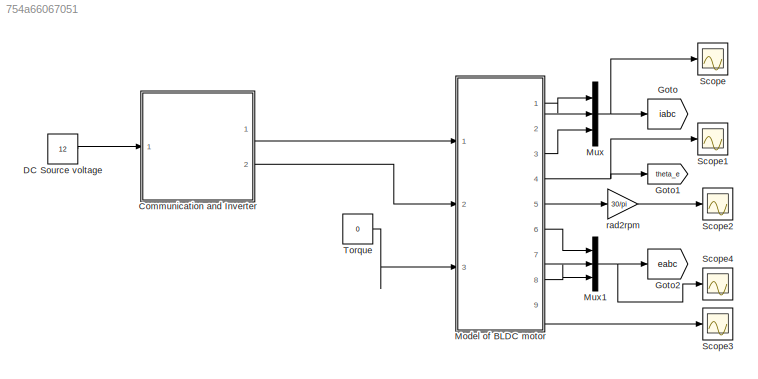
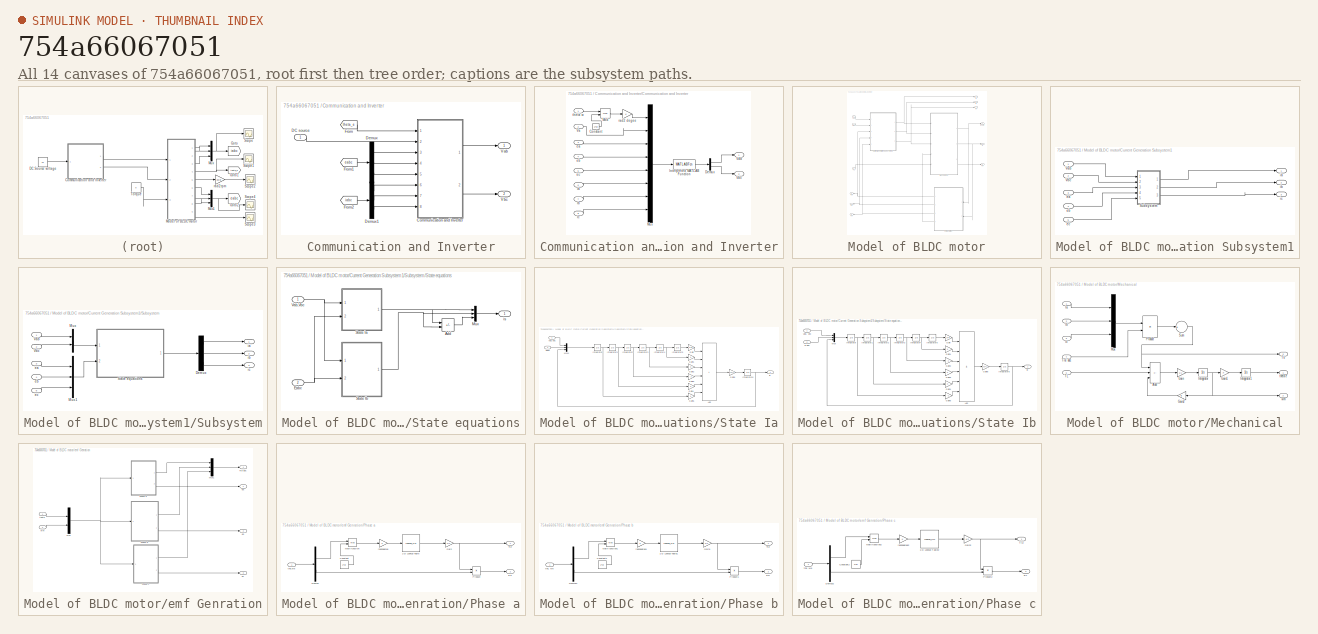
[diagram: thumbnail index - all 14 canvases of the model, root first then tree order]
MODEL slx_754a66067051
KIND model
CONFIG AbsTol = auto
CONFIG EnableMultiTasking = off
CONFIG FixedStep = auto
CONFIG MaxStep = auto
CONFIG MinStep = auto
CONFIG RelTol = 1e-3
CONFIG SampleTimeConstraint = Unconstrained
CONFIG SolverName = VariableStepAuto
CONFIG StartTime = 0.0
CONFIG StopTime = 10.0
BLOCK [SubSystem] Communication and Inverter
  Ports = [1, 2]
  RequestExecContextInheritance = off
BLOCK [SubSystem] Communication and Inverter/Communication and Inverter
  Ports = [8, 2]
  RequestExecContextInheritance = off
BLOCK [Constant] Communication and Inverter/Communication and Inverter/Constant
  Value = 2*pi
BLOCK [Demux] Communication and Inverter/Communication and Inverter/Demux
  Outputs = 2
  Ports = [1, 2]
BLOCK [Inport] Communication and Inverter/Communication and Inverter/Ia
  Port = 6
BLOCK [Inport] Communication and Inverter/Communication and Inverter/Ib
  Port = 7
BLOCK [Inport] Communication and Inverter/Communication and Inverter/Ic
  Port = 8
BLOCK [MATLABFcn] Communication and Inverter/Communication and Inverter/Interpreted MATLAB Function
  Ports = [1, 1]
BLOCK [Math] Communication and Inverter/Communication and Inverter/Mod
  Operator = mod
  Ports = [2, 1]
BLOCK [Mux] Communication and Inverter/Communication and Inverter/Mux
  DisplayOption = bar
  Inputs = 8
  Ports = [8, 1]
BLOCK [Inport] Communication and Inverter/Communication and Inverter/Va
  Port = 2
BLOCK [Outport] Communication and Inverter/Communication and Inverter/Vab
BLOCK [Outport] Communication and Inverter/Communication and Inverter/Vbc
  Port = 2
BLOCK [Inport] Communication and Inverter/Communication and Inverter/ea
  Port = 3
BLOCK [Inport] Communication and Inverter/Communication and Inverter/eb
  Port = 4
BLOCK [Inport] Communication and Inverter/Communication and Inverter/ec
  Port = 5
BLOCK [Gain] Communication and Inverter/Communication and Inverter/rad2 degee
  Gain = K
BLOCK [Inport] Communication and Inverter/Communication and Inverter/theta w
BLOCK [Inport] Communication and Inverter/DC source
BLOCK [Demux] Communication and Inverter/Demux
  Outputs = 3
  Ports = [1, 3]
BLOCK [Demux] Communication and Inverter/Demux1
  Outputs = 3
  Ports = [1, 3]
BLOCK [From] Communication and Inverter/From
  GotoTag = theta_e
BLOCK [From] Communication and Inverter/From1
  GotoTag = eabc
BLOCK [From] Communication and Inverter/From2
  GotoTag = iabc
BLOCK [Outport] Communication and Inverter/Vab
BLOCK [Outport] Communication and Inverter/Vbc
  Port = 2
BLOCK [Constant] DC Source voltage
  Value = 12
BLOCK [Goto] Goto
  GotoTag = iabc
BLOCK [Goto] Goto1
  GotoTag = theta_e
BLOCK [Goto] Goto2
  GotoTag = eabc
BLOCK [SubSystem] Model of BLDC motor
  Ports = [3, 9]
  RequestExecContextInheritance = off
BLOCK [SubSystem] Model of BLDC motor/Current Generation Subsystem1
  Ports = [5, 3]
  RequestExecContextInheritance = off
BLOCK [SubSystem] Model of BLDC motor/Current Generation Subsystem1/Subsystem
  Ports = [5, 3]
  RequestExecContextInheritance = off
BLOCK [Demux] Model of BLDC motor/Current Generation Subsystem1/Subsystem/Demux
  Outputs = 3
  Ports = [1, 3]
BLOCK [Mux] Model of BLDC motor/Current Generation Subsystem1/Subsystem/Mux
  DisplayOption = bar
  Inputs = 2
  Ports = [2, 1]
BLOCK [Mux] Model of BLDC motor/Current Generation Subsystem1/Subsystem/Mux1
  DisplayOption = bar
  Inputs = 3
  Ports = [3, 1]
BLOCK [SubSystem] Model of BLDC motor/Current Generation Subsystem1/Subsystem/State equations
  Ports = [2, 1]
  RequestExecContextInheritance = off
BLOCK [Sum] Model of BLDC motor/Current Generation Subsystem1/Subsystem/State equations/Add
  IconShape = rectangular
  Inputs = --
  Ports = [2, 1]
BLOCK [Inport] Model of BLDC motor/Current Generation Subsystem1/Subsystem/State equations/Eabc
  Port = 2
BLOCK [Mux] Model of BLDC motor/Current Generation Subsystem1/Subsystem/State equations/Mux
  DisplayOption = bar
  Inputs = 3
  Ports = [3, 1]
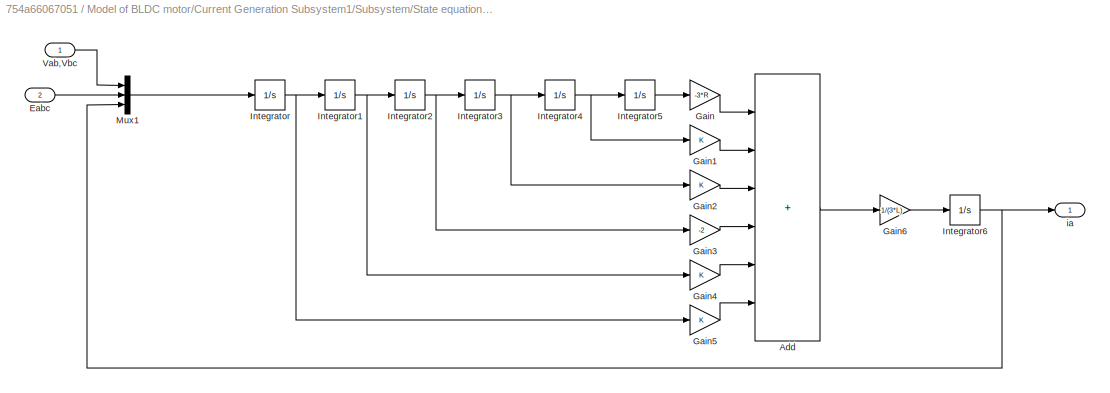
BLOCK [SubSystem] Model of BLDC motor/Current Generation Subsystem1/Subsystem/State equations/State Ia
  Ports = [2, 1]
  RequestExecContextInheritance = off
BLOCK [Sum] Model of BLDC motor/Current Generation Subsystem1/Subsystem/State equations/State Ia/Add
  IconShape = rectangular
  Inputs = ++++++
  Ports = [6, 1]
BLOCK [Inport] Model of BLDC motor/Current Generation Subsystem1/Subsystem/State equations/State Ia/Eabc
  Port = 2
BLOCK [Gain] Model of BLDC motor/Current Generation Subsystem1/Subsystem/State equations/State Ia/Gain
  Gain = -3*R
BLOCK [Gain] Model of BLDC motor/Current Generation Subsystem1/Subsystem/State equations/State Ia/Gain1
BLOCK [Gain] Model of BLDC motor/Current Generation Subsystem1/Subsystem/State equations/State Ia/Gain2
BLOCK [Gain] Model of BLDC motor/Current Generation Subsystem1/Subsystem/State equations/State Ia/Gain3
  Gain = -2
BLOCK [Gain] Model of BLDC motor/Current Generation Subsystem1/Subsystem/State equations/State Ia/Gain4
BLOCK [Gain] Model of BLDC motor/Current Generation Subsystem1/Subsystem/State equations/State Ia/Gain5
BLOCK [Gain] Model of BLDC motor/Current Generation Subsystem1/Subsystem/State equations/State Ia/Gain6
  Gain = 1/(3*L)
BLOCK [Integrator] Model of BLDC motor/Current Generation Subsystem1/Subsystem/State equations/State Ia/Integrator
  Ports = [1, 1]
BLOCK [Integrator] Model of BLDC motor/Current Generation Subsystem1/Subsystem/State equations/State Ia/Integrator1
  Ports = [1, 1]
BLOCK [Integrator] Model of BLDC motor/Current Generation Subsystem1/Subsystem/State equations/State Ia/Integrator2
  Ports = [1, 1]
BLOCK [Integrator] Model of BLDC motor/Current Generation Subsystem1/Subsystem/State equations/State Ia/Integrator3
  Ports = [1, 1]
BLOCK [Integrator] Model of BLDC motor/Current Generation Subsystem1/Subsystem/State equations/State Ia/Integrator4
  Ports = [1, 1]
BLOCK [Integrator] Model of BLDC motor/Current Generation Subsystem1/Subsystem/State equations/State Ia/Integrator5
  Ports = [1, 1]
BLOCK [Integrator] Model of BLDC motor/Current Generation Subsystem1/Subsystem/State equations/State Ia/Integrator6
  Ports = [1, 1]
BLOCK [Mux] Model of BLDC motor/Current Generation Subsystem1/Subsystem/State equations/State Ia/Mux1
  DisplayOption = bar
  Inputs = 3
  Ports = [3, 1]
BLOCK [Inport] Model of BLDC motor/Current Generation Subsystem1/Subsystem/State equations/State Ia/Vab,Vbc
BLOCK [Outport] Model of BLDC motor/Current Generation Subsystem1/Subsystem/State equations/State Ia/ia
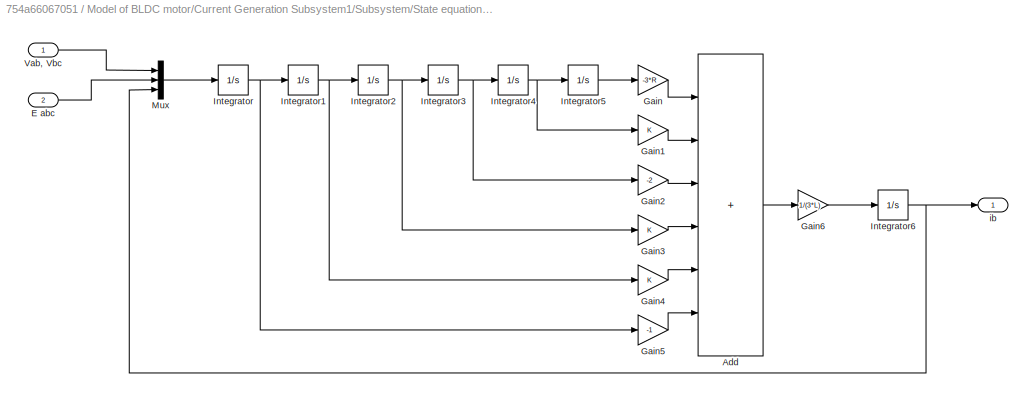
BLOCK [SubSystem] Model of BLDC motor/Current Generation Subsystem1/Subsystem/State equations/State Ib
  Ports = [2, 1]
  RequestExecContextInheritance = off
BLOCK [Sum] Model of BLDC motor/Current Generation Subsystem1/Subsystem/State equations/State Ib/Add
  IconShape = rectangular
  Inputs = ++++++
  Ports = [6, 1]
BLOCK [Inport] Model of BLDC motor/Current Generation Subsystem1/Subsystem/State equations/State Ib/E abc
  Port = 2
BLOCK [Gain] Model of BLDC motor/Current Generation Subsystem1/Subsystem/State equations/State Ib/Gain
  Gain = -3*R
BLOCK [Gain] Model of BLDC motor/Current Generation Subsystem1/Subsystem/State equations/State Ib/Gain1
BLOCK [Gain] Model of BLDC motor/Current Generation Subsystem1/Subsystem/State equations/State Ib/Gain2
  Gain = -2
BLOCK [Gain] Model of BLDC motor/Current Generation Subsystem1/Subsystem/State equations/State Ib/Gain3
BLOCK [Gain] Model of BLDC motor/Current Generation Subsystem1/Subsystem/State equations/State Ib/Gain4
BLOCK [Gain] Model of BLDC motor/Current Generation Subsystem1/Subsystem/State equations/State Ib/Gain5
  Gain = -1
BLOCK [Gain] Model of BLDC motor/Current Generation Subsystem1/Subsystem/State equations/State Ib/Gain6
  Gain = 1/(3*L)
BLOCK [Integrator] Model of BLDC motor/Current Generation Subsystem1/Subsystem/State equations/State Ib/Integrator
  Ports = [1, 1]
BLOCK [Integrator] Model of BLDC motor/Current Generation Subsystem1/Subsystem/State equations/State Ib/Integrator1
  Ports = [1, 1]
BLOCK [Integrator] Model of BLDC motor/Current Generation Subsystem1/Subsystem/State equations/State Ib/Integrator2
  Ports = [1, 1]
BLOCK [Integrator] Model of BLDC motor/Current Generation Subsystem1/Subsystem/State equations/State Ib/Integrator3
  Ports = [1, 1]
BLOCK [Integrator] Model of BLDC motor/Current Generation Subsystem1/Subsystem/State equations/State Ib/Integrator4
  Ports = [1, 1]
BLOCK [Integrator] Model of BLDC motor/Current Generation Subsystem1/Subsystem/State equations/State Ib/Integrator5
  Ports = [1, 1]
BLOCK [Integrator] Model of BLDC motor/Current Generation Subsystem1/Subsystem/State equations/State Ib/Integrator6
  Ports = [1, 1]
BLOCK [Mux] Model of BLDC motor/Current Generation Subsystem1/Subsystem/State equations/State Ib/Mux
  DisplayOption = bar
  Inputs = 3
  Ports = [3, 1]
BLOCK [Inport] Model of BLDC motor/Current Generation Subsystem1/Subsystem/State equations/State Ib/Vab, Vbc
BLOCK [Outport] Model of BLDC motor/Current Generation Subsystem1/Subsystem/State equations/State Ib/ib
BLOCK [Inport] Model of BLDC motor/Current Generation Subsystem1/Subsystem/State equations/Vab,Vbc
BLOCK [Outport] Model of BLDC motor/Current Generation Subsystem1/Subsystem/State equations/is
BLOCK [Inport] Model of BLDC motor/Current Generation Subsystem1/Subsystem/Vab
BLOCK [Inport] Model of BLDC motor/Current Generation Subsystem1/Subsystem/Vbc
  Port = 2
BLOCK [Inport] Model of BLDC motor/Current Generation Subsystem1/Subsystem/ea
  Port = 3
BLOCK [Inport] Model of BLDC motor/Current Generation Subsystem1/Subsystem/eb
  Port = 4
BLOCK [Inport] Model of BLDC motor/Current Generation Subsystem1/Subsystem/ec
  Port = 5
BLOCK [Outport] Model of BLDC motor/Current Generation Subsystem1/Subsystem/ia
BLOCK [Outport] Model of BLDC motor/Current Generation Subsystem1/Subsystem/ib
  Port = 2
BLOCK [Outport] Model of BLDC motor/Current Generation Subsystem1/Subsystem/ic
  Port = 3
BLOCK [Inport] Model of BLDC motor/Current Generation Subsystem1/Vab
BLOCK [Inport] Model of BLDC motor/Current Generation Subsystem1/Vbc
  Port = 2
BLOCK [Inport] Model of BLDC motor/Current Generation Subsystem1/ea
  Port = 3
BLOCK [Inport] Model of BLDC motor/Current Generation Subsystem1/eb
  Port = 4
BLOCK [Inport] Model of BLDC motor/Current Generation Subsystem1/ec
  Port = 5
BLOCK [Outport] Model of BLDC motor/Current Generation Subsystem1/ia
BLOCK [Outport] Model of BLDC motor/Current Generation Subsystem1/ib
  Port = 2
BLOCK [Outport] Model of BLDC motor/Current Generation Subsystem1/ic
  Port = 3
BLOCK [Outport] Model of BLDC motor/Ia
BLOCK [Outport] Model of BLDC motor/Ib
  Port = 2
BLOCK [Outport] Model of BLDC motor/Ic
  Port = 3
BLOCK [SubSystem] Model of BLDC motor/Mechanical
  Ports = [5, 3]
  RequestExecContextInheritance = off
BLOCK [Sum] Model of BLDC motor/Mechanical/Add
  IconShape = rectangular
  Inputs = +--
  Ports = [3, 1]
BLOCK [Gain] Model of BLDC motor/Mechanical/Gain
  Gain = 1/J
BLOCK [Gain] Model of BLDC motor/Mechanical/Gain1
  Gain = P
BLOCK [Gain] Model of BLDC motor/Mechanical/Gain2
  Gain = B
BLOCK [Inport] Model of BLDC motor/Mechanical/Ia
BLOCK [Inport] Model of BLDC motor/Mechanical/Ib
  Port = 2
BLOCK [Inport] Model of BLDC motor/Mechanical/Ic
  Port = 3
BLOCK [Integrator] Model of BLDC motor/Mechanical/Integrator
  Ports = [1, 1]
BLOCK [Integrator] Model of BLDC motor/Mechanical/Integrator1
  Ports = [1, 1]
BLOCK [Mux] Model of BLDC motor/Mechanical/Mux
  DisplayOption = bar
  Inputs = 3
  Ports = [3, 1]
BLOCK [Product] Model of BLDC motor/Mechanical/Product
  Ports = [2, 1]
BLOCK [Sum] Model of BLDC motor/Mechanical/Sum
  Inputs = +
  Ports = [1, 1]
BLOCK [Inport] Model of BLDC motor/Mechanical/TL
  Port = 5
BLOCK [Outport] Model of BLDC motor/Mechanical/Te
  Port = 3
BLOCK [Inport] Model of BLDC motor/Mechanical/Tra' abc
  Port = 4
BLOCK [Outport] Model of BLDC motor/Mechanical/theta e
BLOCK [Outport] Model of BLDC motor/Mechanical/wm
  Port = 2
BLOCK [Inport] Model of BLDC motor/TL
  Port = 3
BLOCK [Outport] Model of BLDC motor/Te
  Port = 9
BLOCK [Inport] Model of BLDC motor/Vab
BLOCK [Inport] Model of BLDC motor/Vbc
  Port = 2
BLOCK [Outport] Model of BLDC motor/ea
  Port = 6
BLOCK [Outport] Model of BLDC motor/eb
  Port = 7
BLOCK [Outport] Model of BLDC motor/ec
  Port = 8
BLOCK [SubSystem] Model of BLDC motor/emf Genration
  Ports = [2, 4]
  RequestExecContextInheritance = off
BLOCK [Mux] Model of BLDC motor/emf Genration/Mux
  DisplayOption = bar
  Inputs = 2
  Ports = [2, 1]
BLOCK [Mux] Model of BLDC motor/emf Genration/Mux1
  DisplayOption = bar
  Inputs = 3
  Ports = [3, 1]
BLOCK [SubSystem] Model of BLDC motor/emf Genration/Phase a
  Ports = [1, 2]
  RequestExecContextInheritance = off
BLOCK [Lookup_n-D] Model of BLDC motor/emf Genration/Phase a/1-D Lookup Table
  BreakpointsForDimension1 = [-5:5]
  InputPortMap = u0
  InternalRulePriority = Speed
  NumberOfTableDimensions = 1
  Ports = [1, 1]
  RndMeth = Simplest
  Table = tanh([-5:5])
BLOCK [Constant] Model of BLDC motor/emf Genration/Phase a/Constant
  Value = 2*pi
BLOCK [Demux] Model of BLDC motor/emf Genration/Phase a/Demux
  Outputs = 2
  Ports = [1, 2]
BLOCK [Outport] Model of BLDC motor/emf Genration/Phase a/Ea
  Port = 2
BLOCK [Gain] Model of BLDC motor/emf Genration/Phase a/Gain
  Gain = K/2
BLOCK [Math] Model of BLDC motor/emf Genration/Phase a/Math function
  Operator = mod
  Ports = [2, 1]
BLOCK [Product] Model of BLDC motor/emf Genration/Phase a/Product
  Ports = [2, 1]
BLOCK [Outport] Model of BLDC motor/emf Genration/Phase a/Tra'
BLOCK [Gain] Model of BLDC motor/emf Genration/Phase a/rad2degree
  Gain = K
BLOCK [Inport] Model of BLDC motor/emf Genration/Phase a/the,we
BLOCK [SubSystem] Model of BLDC motor/emf Genration/Phase b
  Ports = [1, 2]
  RequestExecContextInheritance = off
BLOCK [Lookup_n-D] Model of BLDC motor/emf Genration/Phase b/1-D Lookup Table1
  BreakpointsForDimension1 = [-5:5]
  InputPortMap = u0
  InternalRulePriority = Speed
  NumberOfTableDimensions = 1
  Ports = [1, 1]
  RndMeth = Simplest
  Table = tanh([-5:5])
BLOCK [Constant] Model of BLDC motor/emf Genration/Phase b/Constant1
  Value = 2*pi
BLOCK [Demux] Model of BLDC motor/emf Genration/Phase b/Demux1
  Outputs = 2
  Ports = [1, 2]
BLOCK [Outport] Model of BLDC motor/emf Genration/Phase b/Eb
  Port = 2
BLOCK [Gain] Model of BLDC motor/emf Genration/Phase b/Gain1
  Gain = K/2
BLOCK [Math] Model of BLDC motor/emf Genration/Phase b/Math function1
  Operator = mod
  Ports = [2, 1]
BLOCK [Product] Model of BLDC motor/emf Genration/Phase b/Product1
  Ports = [2, 1]
BLOCK [Outport] Model of BLDC motor/emf Genration/Phase b/Tra'
BLOCK [Gain] Model of BLDC motor/emf Genration/Phase b/rad2degree1
  Gain = K
BLOCK [Inport] Model of BLDC motor/emf Genration/Phase b/the, we
BLOCK [SubSystem] Model of BLDC motor/emf Genration/Phase c
  Ports = [1, 2]
  RequestExecContextInheritance = off
BLOCK [Lookup_n-D] Model of BLDC motor/emf Genration/Phase c/1-D Lookup Table2
  BreakpointsForDimension1 = [-5:5]
  InputPortMap = u0
  InternalRulePriority = Speed
  NumberOfTableDimensions = 1
  Ports = [1, 1]
  RndMeth = Simplest
  Table = tanh([-5:5])
BLOCK [Constant] Model of BLDC motor/emf Genration/Phase c/Constant2
  Value = 2*pi
BLOCK [Demux] Model of BLDC motor/emf Genration/Phase c/Demux2
  Outputs = 2
  Ports = [1, 2]
BLOCK [Outport] Model of BLDC motor/emf Genration/Phase c/Ec
  Port = 2
BLOCK [Gain] Model of BLDC motor/emf Genration/Phase c/Gain2
  Gain = K/2
BLOCK [Math] Model of BLDC motor/emf Genration/Phase c/Math function2
  Operator = mod
  Ports = [2, 1]
BLOCK [Product] Model of BLDC motor/emf Genration/Phase c/Product2
  Ports = [2, 1]
BLOCK [Outport] Model of BLDC motor/emf Genration/Phase c/Tra'
BLOCK [Gain] Model of BLDC motor/emf Genration/Phase c/rad2degree2
  Gain = K
BLOCK [Inport] Model of BLDC motor/emf Genration/Phase c/the ,we
BLOCK [Outport] Model of BLDC motor/emf Genration/Tra' abc
  Port = 4
BLOCK [Outport] Model of BLDC motor/emf Genration/ea
BLOCK [Outport] Model of BLDC motor/emf Genration/eb
  Port = 2
BLOCK [Outport] Model of BLDC motor/emf Genration/ec
  Port = 3
BLOCK [Inport] Model of BLDC motor/emf Genration/theta
BLOCK [Inport] Model of BLDC motor/emf Genration/wm
  Port = 2
BLOCK [Outport] Model of BLDC motor/theat e
  Port = 4
BLOCK [Outport] Model of BLDC motor/w
  Port = 5
BLOCK [Mux] Mux
  DisplayOption = bar
  Inputs = 3
  Ports = [3, 1]
BLOCK [Mux] Mux1
  DisplayOption = bar
  Inputs = 3
  Ports = [3, 1]
BLOCK [Scope] Scope
  Floating = off
  NumInputPorts = 1
  Ports = [1]
  ScopeSpecificationString = Simulink.scopes.TimeScopeBlockCfg('CurrentConfiguration', extmgr.ConfigurationSet(extmgr.Configuration('Core','General UI',true),extmgr.Configuration('Core','Source UI',true),extmgr.Configuration('Sources','WiredSimulink',true),extmgr.Configuration('Visuals','Time Domain',true),extmgr.Configuration('Tools','Plot Navigation',true),extmgr.Configuration('Tools','Measurements',true)),'Version','2020b'...<+1ch>
BLOCK [Scope] Scope1
  Floating = off
  NumInputPorts = 1
  Ports = [1]
  ScopeSpecificationString = Simulink.scopes.TimeScopeBlockCfg('CurrentConfiguration', extmgr.ConfigurationSet(extmgr.Configuration('Core','General UI',true),extmgr.Configuration('Core','Source UI',true),extmgr.Configuration('Sources','WiredSimulink',true,'DataLoggingVariableName','ScopeData1'),extmgr.Configuration('Visuals','Time Domain',true),extmgr.Configuration('Tools','Plot Navigation',true),extmgr.Configuration('Tools',...<+40ch>
BLOCK [Scope] Scope2
  Floating = off
  NumInputPorts = 1
  Ports = [1]
  ScopeSpecificationString = Simulink.scopes.TimeScopeBlockCfg('CurrentConfiguration', extmgr.ConfigurationSet(extmgr.Configuration('Core','General UI',true),extmgr.Configuration('Core','Source UI',true),extmgr.Configuration('Sources','WiredSimulink',true,'DataLoggingVariableName','ScopeData2'),extmgr.Configuration('Visuals','Time Domain',true),extmgr.Configuration('Tools','Plot Navigation',true),extmgr.Configuration('Tools',...<+40ch>
BLOCK [Scope] Scope3
  Floating = off
  NumInputPorts = 1
  Ports = [1]
  ScopeSpecificationString = Simulink.scopes.TimeScopeBlockCfg('CurrentConfiguration', extmgr.ConfigurationSet(extmgr.Configuration('Core','General UI',true),extmgr.Configuration('Core','Source UI',true),extmgr.Configuration('Sources','WiredSimulink',true,'DataLoggingVariableName','ScopeData3'),extmgr.Configuration('Visuals','Time Domain',true),extmgr.Configuration('Tools','Plot Navigation',true),extmgr.Configuration('Tools',...<+40ch>
BLOCK [Scope] Scope4
  Floating = off
  NumInputPorts = 1
  Ports = [1]
  ScopeSpecificationString = Simulink.scopes.TimeScopeBlockCfg('CurrentConfiguration', extmgr.ConfigurationSet(extmgr.Configuration('Core','General UI',true),extmgr.Configuration('Core','Source UI',true),extmgr.Configuration('Sources','WiredSimulink',true,'DataLoggingVariableName','ScopeData4'),extmgr.Configuration('Visuals','Time Domain',true),extmgr.Configuration('Tools','Plot Navigation',true),extmgr.Configuration('Tools',...<+40ch>
BLOCK [Constant] Torque
  Value = 0
BLOCK [Gain] rad2rpm
  Gain = 30/pi
LINE Communication and Inverter/Communication and Inverter/Constant:1 -> Communication and Inverter/Communication and Inverter/Mod:2
LINE Communication and Inverter/Communication and Inverter/Demux:1 -> Communication and Inverter/Communication and Inverter/Vab:1
LINE Communication and Inverter/Communication and Inverter/Demux:2 -> Communication and Inverter/Communication and Inverter/Vbc:1
LINE Communication and Inverter/Communication and Inverter/Ia:1 -> Communication and Inverter/Communication and Inverter/Mux:6
LINE Communication and Inverter/Communication and Inverter/Ib:1 -> Communication and Inverter/Communication and Inverter/Mux:7
LINE Communication and Inverter/Communication and Inverter/Ic:1 -> Communication and Inverter/Communication and Inverter/Mux:8
LINE Communication and Inverter/Communication and Inverter/Interpreted MATLAB Function:1 -> Communication and Inverter/Communication and Inverter/Demux:1
LINE Communication and Inverter/Communication and Inverter/Mod:1 -> Communication and Inverter/Communication and Inverter/rad2 degee:1
LINE Communication and Inverter/Communication and Inverter/Mux:1 -> Communication and Inverter/Communication and Inverter/Interpreted MATLAB Function:1
LINE Communication and Inverter/Communication and Inverter/Va:1 -> Communication and Inverter/Communication and Inverter/Mux:2
LINE Communication and Inverter/Communication and Inverter/ea:1 -> Communication and Inverter/Communication and Inverter/Mux:3
LINE Communication and Inverter/Communication and Inverter/eb:1 -> Communication and Inverter/Communication and Inverter/Mux:4
LINE Communication and Inverter/Communication and Inverter/ec:1 -> Communication and Inverter/Communication and Inverter/Mux:5
LINE Communication and Inverter/Communication and Inverter/rad2 degee:1 -> Communication and Inverter/Communication and Inverter/Mux:1
LINE Communication and Inverter/Communication and Inverter/theta w:1 -> Communication and Inverter/Communication and Inverter/Mod:1
LINE Communication and Inverter/Communication and Inverter:1 -> Communication and Inverter/Vab:1
LINE Communication and Inverter/Communication and Inverter:2 -> Communication and Inverter/Vbc:1
LINE Communication and Inverter/DC source:1 -> Communication and Inverter/Communication and Inverter:2
LINE Communication and Inverter/Demux1:1 -> Communication and Inverter/Communication and Inverter:6
LINE Communication and Inverter/Demux1:2 -> Communication and Inverter/Communication and Inverter:7
LINE Communication and Inverter/Demux1:3 -> Communication and Inverter/Communication and Inverter:8
LINE Communication and Inverter/Demux:1 -> Communication and Inverter/Communication and Inverter:3
LINE Communication and Inverter/Demux:2 -> Communication and Inverter/Communication and Inverter:4
LINE Communication and Inverter/Demux:3 -> Communication and Inverter/Communication and Inverter:5
LINE Communication and Inverter/From1:1 -> Communication and Inverter/Demux:1
LINE Communication and Inverter/From2:1 -> Communication and Inverter/Demux1:1
LINE Communication and Inverter/From:1 -> Communication and Inverter/Communication and Inverter:1
LINE Communication and Inverter:1 -> Model of BLDC motor:1
LINE Communication and Inverter:2 -> Model of BLDC motor:2
LINE DC Source voltage:1 -> Communication and Inverter:1
LINE Model of BLDC motor/Current Generation Subsystem1/Subsystem/Demux:1 -> Model of BLDC motor/Current Generation Subsystem1/Subsystem/ia:1
LINE Model of BLDC motor/Current Generation Subsystem1/Subsystem/Demux:2 -> Model of BLDC motor/Current Generation Subsystem1/Subsystem/ib:1
LINE Model of BLDC motor/Current Generation Subsystem1/Subsystem/Demux:3 -> Model of BLDC motor/Current Generation Subsystem1/Subsystem/ic:1
LINE Model of BLDC motor/Current Generation Subsystem1/Subsystem/Mux1:1 -> Model of BLDC motor/Current Generation Subsystem1/Subsystem/State equations:2
LINE Model of BLDC motor/Current Generation Subsystem1/Subsystem/Mux:1 -> Model of BLDC motor/Current Generation Subsystem1/Subsystem/State equations:1
LINE Model of BLDC motor/Current Generation Subsystem1/Subsystem/State equations/Add:1 -> Model of BLDC motor/Current Generation Subsystem1/Subsystem/State equations/Mux:3
NET Model of BLDC motor/Current Generation Subsystem1/Subsystem/State equations/Eabc:1 -> Model of BLDC motor/Current Generation Subsystem1/Subsystem/State equations/State Ia:2, Model of BLDC motor/Current Generation Subsystem1/Subsystem/State equations/State Ib:2
LINE Model of BLDC motor/Current Generation Subsystem1/Subsystem/State equations/Mux:1 -> Model of BLDC motor/Current Generation Subsystem1/Subsystem/State equations/is:1
LINE Model of BLDC motor/Current Generation Subsystem1/Subsystem/State equations/State Ia/Add:1 -> Model of BLDC motor/Current Generation Subsystem1/Subsystem/State equations/State Ia/Gain6:1
LINE Model of BLDC motor/Current Generation Subsystem1/Subsystem/State equations/State Ia/Eabc:1 -> Model of BLDC motor/Current Generation Subsystem1/Subsystem/State equations/State Ia/Mux1:2
LINE Model of BLDC motor/Current Generation Subsystem1/Subsystem/State equations/State Ia/Gain1:1 -> Model of BLDC motor/Current Generation Subsystem1/Subsystem/State equations/State Ia/Add:2
LINE Model of BLDC motor/Current Generation Subsystem1/Subsystem/State equations/State Ia/Gain2:1 -> Model of BLDC motor/Current Generation Subsystem1/Subsystem/State equations/State Ia/Add:3
LINE Model of BLDC motor/Current Generation Subsystem1/Subsystem/State equations/State Ia/Gain3:1 -> Model of BLDC motor/Current Generation Subsystem1/Subsystem/State equations/State Ia/Add:4
LINE Model of BLDC motor/Current Generation Subsystem1/Subsystem/State equations/State Ia/Gain4:1 -> Model of BLDC motor/Current Generation Subsystem1/Subsystem/State equations/State Ia/Add:5
LINE Model of BLDC motor/Current Generation Subsystem1/Subsystem/State equations/State Ia/Gain5:1 -> Model of BLDC motor/Current Generation Subsystem1/Subsystem/State equations/State Ia/Add:6
LINE Model of BLDC motor/Current Generation Subsystem1/Subsystem/State equations/State Ia/Gain6:1 -> Model of BLDC motor/Current Generation Subsystem1/Subsystem/State equations/State Ia/Integrator6:1
LINE Model of BLDC motor/Current Generation Subsystem1/Subsystem/State equations/State Ia/Gain:1 -> Model of BLDC motor/Current Generation Subsystem1/Subsystem/State equations/State Ia/Add:1
NET Model of BLDC motor/Current Generation Subsystem1/Subsystem/State equations/State Ia/Integrator1:1 -> Model of BLDC motor/Current Generation Subsystem1/Subsystem/State equations/State Ia/Gain4:1, Model of BLDC motor/Current Generation Subsystem1/Subsystem/State equations/State Ia/Integrator2:1
NET Model of BLDC motor/Current Generation Subsystem1/Subsystem/State equations/State Ia/Integrator2:1 -> Model of BLDC motor/Current Generation Subsystem1/Subsystem/State equations/State Ia/Gain3:1, Model of BLDC motor/Current Generation Subsystem1/Subsystem/State equations/State Ia/Integrator3:1
NET Model of BLDC motor/Current Generation Subsystem1/Subsystem/State equations/State Ia/Integrator3:1 -> Model of BLDC motor/Current Generation Subsystem1/Subsystem/State equations/State Ia/Gain2:1, Model of BLDC motor/Current Generation Subsystem1/Subsystem/State equations/State Ia/Integrator4:1
NET Model of BLDC motor/Current Generation Subsystem1/Subsystem/State equations/State Ia/Integrator4:1 -> Model of BLDC motor/Current Generation Subsystem1/Subsystem/State equations/State Ia/Gain1:1, Model of BLDC motor/Current Generation Subsystem1/Subsystem/State equations/State Ia/Integrator5:1
LINE Model of BLDC motor/Current Generation Subsystem1/Subsystem/State equations/State Ia/Integrator5:1 -> Model of BLDC motor/Current Generation Subsystem1/Subsystem/State equations/State Ia/Gain:1
NET Model of BLDC motor/Current Generation Subsystem1/Subsystem/State equations/State Ia/Integrator6:1 -> Model of BLDC motor/Current Generation Subsystem1/Subsystem/State equations/State Ia/Mux1:3, Model of BLDC motor/Current Generation Subsystem1/Subsystem/State equations/State Ia/ia:1
NET Model of BLDC motor/Current Generation Subsystem1/Subsystem/State equations/State Ia/Integrator:1 -> Model of BLDC motor/Current Generation Subsystem1/Subsystem/State equations/State Ia/Gain5:1, Model of BLDC motor/Current Generation Subsystem1/Subsystem/State equations/State Ia/Integrator1:1
LINE Model of BLDC motor/Current Generation Subsystem1/Subsystem/State equations/State Ia/Mux1:1 -> Model of BLDC motor/Current Generation Subsystem1/Subsystem/State equations/State Ia/Integrator:1
LINE Model of BLDC motor/Current Generation Subsystem1/Subsystem/State equations/State Ia/Vab,Vbc:1 -> Model of BLDC motor/Current Generation Subsystem1/Subsystem/State equations/State Ia/Mux1:1
NET Model of BLDC motor/Current Generation Subsystem1/Subsystem/State equations/State Ia:1 -> Model of BLDC motor/Current Generation Subsystem1/Subsystem/State equations/Add:1, Model of BLDC motor/Current Generation Subsystem1/Subsystem/State equations/Mux:1
LINE Model of BLDC motor/Current Generation Subsystem1/Subsystem/State equations/State Ib/Add:1 -> Model of BLDC motor/Current Generation Subsystem1/Subsystem/State equations/State Ib/Gain6:1
LINE Model of BLDC motor/Current Generation Subsystem1/Subsystem/State equations/State Ib/E abc:1 -> Model of BLDC motor/Current Generation Subsystem1/Subsystem/State equations/State Ib/Mux:2
LINE Model of BLDC motor/Current Generation Subsystem1/Subsystem/State equations/State Ib/Gain1:1 -> Model of BLDC motor/Current Generation Subsystem1/Subsystem/State equations/State Ib/Add:2
LINE Model of BLDC motor/Current Generation Subsystem1/Subsystem/State equations/State Ib/Gain2:1 -> Model of BLDC motor/Current Generation Subsystem1/Subsystem/State equations/State Ib/Add:3
LINE Model of BLDC motor/Current Generation Subsystem1/Subsystem/State equations/State Ib/Gain3:1 -> Model of BLDC motor/Current Generation Subsystem1/Subsystem/State equations/State Ib/Add:4
LINE Model of BLDC motor/Current Generation Subsystem1/Subsystem/State equations/State Ib/Gain4:1 -> Model of BLDC motor/Current Generation Subsystem1/Subsystem/State equations/State Ib/Add:5
LINE Model of BLDC motor/Current Generation Subsystem1/Subsystem/State equations/State Ib/Gain5:1 -> Model of BLDC motor/Current Generation Subsystem1/Subsystem/State equations/State Ib/Add:6
LINE Model of BLDC motor/Current Generation Subsystem1/Subsystem/State equations/State Ib/Gain6:1 -> Model of BLDC motor/Current Generation Subsystem1/Subsystem/State equations/State Ib/Integrator6:1
LINE Model of BLDC motor/Current Generation Subsystem1/Subsystem/State equations/State Ib/Gain:1 -> Model of BLDC motor/Current Generation Subsystem1/Subsystem/State equations/State Ib/Add:1
NET Model of BLDC motor/Current Generation Subsystem1/Subsystem/State equations/State Ib/Integrator1:1 -> Model of BLDC motor/Current Generation Subsystem1/Subsystem/State equations/State Ib/Gain4:1, Model of BLDC motor/Current Generation Subsystem1/Subsystem/State equations/State Ib/Integrator2:1
NET Model of BLDC motor/Current Generation Subsystem1/Subsystem/State equations/State Ib/Integrator2:1 -> Model of BLDC motor/Current Generation Subsystem1/Subsystem/State equations/State Ib/Gain3:1, Model of BLDC motor/Current Generation Subsystem1/Subsystem/State equations/State Ib/Integrator3:1
NET Model of BLDC motor/Current Generation Subsystem1/Subsystem/State equations/State Ib/Integrator3:1 -> Model of BLDC motor/Current Generation Subsystem1/Subsystem/State equations/State Ib/Gain2:1, Model of BLDC motor/Current Generation Subsystem1/Subsystem/State equations/State Ib/Integrator4:1
NET Model of BLDC motor/Current Generation Subsystem1/Subsystem/State equations/State Ib/Integrator4:1 -> Model of BLDC motor/Current Generation Subsystem1/Subsystem/State equations/State Ib/Gain1:1, Model of BLDC motor/Current Generation Subsystem1/Subsystem/State equations/State Ib/Integrator5:1
LINE Model of BLDC motor/Current Generation Subsystem1/Subsystem/State equations/State Ib/Integrator5:1 -> Model of BLDC motor/Current Generation Subsystem1/Subsystem/State equations/State Ib/Gain:1
NET Model of BLDC motor/Current Generation Subsystem1/Subsystem/State equations/State Ib/Integrator6:1 -> Model of BLDC motor/Current Generation Subsystem1/Subsystem/State equations/State Ib/Mux:3, Model of BLDC motor/Current Generation Subsystem1/Subsystem/State equations/State Ib/ib:1
NET Model of BLDC motor/Current Generation Subsystem1/Subsystem/State equations/State Ib/Integrator:1 -> Model of BLDC motor/Current Generation Subsystem1/Subsystem/State equations/State Ib/Gain5:1, Model of BLDC motor/Current Generation Subsystem1/Subsystem/State equations/State Ib/Integrator1:1
LINE Model of BLDC motor/Current Generation Subsystem1/Subsystem/State equations/State Ib/Mux:1 -> Model of BLDC motor/Current Generation Subsystem1/Subsystem/State equations/State Ib/Integrator:1
LINE Model of BLDC motor/Current Generation Subsystem1/Subsystem/State equations/State Ib/Vab, Vbc:1 -> Model of BLDC motor/Current Generation Subsystem1/Subsystem/State equations/State Ib/Mux:1
NET Model of BLDC motor/Current Generation Subsystem1/Subsystem/State equations/State Ib:1 -> Model of BLDC motor/Current Generation Subsystem1/Subsystem/State equations/Add:2, Model of BLDC motor/Current Generation Subsystem1/Subsystem/State equations/Mux:2
NET Model of BLDC motor/Current Generation Subsystem1/Subsystem/State equations/Vab,Vbc:1 -> Model of BLDC motor/Current Generation Subsystem1/Subsystem/State equations/State Ia:1, Model of BLDC motor/Current Generation Subsystem1/Subsystem/State equations/State Ib:1
LINE Model of BLDC motor/Current Generation Subsystem1/Subsystem/State equations:1 -> Model of BLDC motor/Current Generation Subsystem1/Subsystem/Demux:1
LINE Model of BLDC motor/Current Generation Subsystem1/Subsystem/Vab:1 -> Model of BLDC motor/Current Generation Subsystem1/Subsystem/Mux:1
LINE Model of BLDC motor/Current Generation Subsystem1/Subsystem/Vbc:1 -> Model of BLDC motor/Current Generation Subsystem1/Subsystem/Mux:2
LINE Model of BLDC motor/Current Generation Subsystem1/Subsystem/ea:1 -> Model of BLDC motor/Current Generation Subsystem1/Subsystem/Mux1:1
LINE Model of BLDC motor/Current Generation Subsystem1/Subsystem/eb:1 -> Model of BLDC motor/Current Generation Subsystem1/Subsystem/Mux1:2
LINE Model of BLDC motor/Current Generation Subsystem1/Subsystem/ec:1 -> Model of BLDC motor/Current Generation Subsystem1/Subsystem/Mux1:3
LINE Model of BLDC motor/Current Generation Subsystem1/Subsystem:1 -> Model of BLDC motor/Current Generation Subsystem1/ia:1
LINE Model of BLDC motor/Current Generation Subsystem1/Subsystem:2 -> Model of BLDC motor/Current Generation Subsystem1/ib:1
LINE Model of BLDC motor/Current Generation Subsystem1/Subsystem:3 -> Model of BLDC motor/Current Generation Subsystem1/ic:1
LINE Model of BLDC motor/Current Generation Subsystem1/Vab:1 -> Model of BLDC motor/Current Generation Subsystem1/Subsystem:1
LINE Model of BLDC motor/Current Generation Subsystem1/Vbc:1 -> Model of BLDC motor/Current Generation Subsystem1/Subsystem:2
LINE Model of BLDC motor/Current Generation Subsystem1/ea:1 -> Model of BLDC motor/Current Generation Subsystem1/Subsystem:3
LINE Model of BLDC motor/Current Generation Subsystem1/eb:1 -> Model of BLDC motor/Current Generation Subsystem1/Subsystem:4
LINE Model of BLDC motor/Current Generation Subsystem1/ec:1 -> Model of BLDC motor/Current Generation Subsystem1/Subsystem:5
NET Model of BLDC motor/Current Generation Subsystem1:1 -> Model of BLDC motor/Ia:1, Model of BLDC motor/Mechanical:1
NET Model of BLDC motor/Current Generation Subsystem1:2 -> Model of BLDC motor/Ib:1, Model of BLDC motor/Mechanical:2
NET Model of BLDC motor/Current Generation Subsystem1:3 -> Model of BLDC motor/Ic:1, Model of BLDC motor/Mechanical:3
LINE Model of BLDC motor/Mechanical/Add:1 -> Model of BLDC motor/Mechanical/Gain:1
LINE Model of BLDC motor/Mechanical/Gain1:1 -> Model of BLDC motor/Mechanical/Integrator1:1
LINE Model of BLDC motor/Mechanical/Gain2:1 -> Model of BLDC motor/Mechanical/Add:3
LINE Model of BLDC motor/Mechanical/Gain:1 -> Model of BLDC motor/Mechanical/Integrator:1
LINE Model of BLDC motor/Mechanical/Ia:1 -> Model of BLDC motor/Mechanical/Mux:1
LINE Model of BLDC motor/Mechanical/Ib:1 -> Model of BLDC motor/Mechanical/Mux:2
LINE Model of BLDC motor/Mechanical/Ic:1 -> Model of BLDC motor/Mechanical/Mux:3
LINE Model of BLDC motor/Mechanical/Integrator1:1 -> Model of BLDC motor/Mechanical/theta e:1
NET Model of BLDC motor/Mechanical/Integrator:1 -> Model of BLDC motor/Mechanical/Gain1:1, Model of BLDC motor/Mechanical/Gain2:1, Model of BLDC motor/Mechanical/wm:1
LINE Model of BLDC motor/Mechanical/Mux:1 -> Model of BLDC motor/Mechanical/Product:1
LINE Model of BLDC motor/Mechanical/Product:1 -> Model of BLDC motor/Mechanical/Sum:1
NET Model of BLDC motor/Mechanical/Sum:1 -> Model of BLDC motor/Mechanical/Add:1, Model of BLDC motor/Mechanical/Te:1
LINE Model of BLDC motor/Mechanical/TL:1 -> Model of BLDC motor/Mechanical/Add:2
LINE Model of BLDC motor/Mechanical/Tra' abc:1 -> Model of BLDC motor/Mechanical/Product:2
NET Model of BLDC motor/Mechanical:1 -> Model of BLDC motor/emf Genration:1, Model of BLDC motor/theat e:1
NET Model of BLDC motor/Mechanical:2 -> Model of BLDC motor/emf Genration:2, Model of BLDC motor/w:1
LINE Model of BLDC motor/Mechanical:3 -> Model of BLDC motor/Te:1
LINE Model of BLDC motor/TL:1 -> Model of BLDC motor/Mechanical:5
LINE Model of BLDC motor/Vab:1 -> Model of BLDC motor/Current Generation Subsystem1:1
LINE Model of BLDC motor/Vbc:1 -> Model of BLDC motor/Current Generation Subsystem1:2
LINE Model of BLDC motor/emf Genration/Mux1:1 -> Model of BLDC motor/emf Genration/Tra' abc:1
NET Model of BLDC motor/emf Genration/Mux:1 -> Model of BLDC motor/emf Genration/Phase a:1, Model of BLDC motor/emf Genration/Phase b:1, Model of BLDC motor/emf Genration/Phase c:1
LINE Model of BLDC motor/emf Genration/Phase a/1-D Lookup Table:1 -> Model of BLDC motor/emf Genration/Phase a/Gain:1
LINE Model of BLDC motor/emf Genration/Phase a/Constant:1 -> Model of BLDC motor/emf Genration/Phase a/Math function:2
LINE Model of BLDC motor/emf Genration/Phase a/Demux:1 -> Model of BLDC motor/emf Genration/Phase a/Math function:1
LINE Model of BLDC motor/emf Genration/Phase a/Demux:2 -> Model of BLDC motor/emf Genration/Phase a/Product:2
NET Model of BLDC motor/emf Genration/Phase a/Gain:1 -> Model of BLDC motor/emf Genration/Phase a/Product:1, Model of BLDC motor/emf Genration/Phase a/Tra':1
LINE Model of BLDC motor/emf Genration/Phase a/Math function:1 -> Model of BLDC motor/emf Genration/Phase a/rad2degree:1
LINE Model of BLDC motor/emf Genration/Phase a/Product:1 -> Model of BLDC motor/emf Genration/Phase a/Ea:1
LINE Model of BLDC motor/emf Genration/Phase a/rad2degree:1 -> Model of BLDC motor/emf Genration/Phase a/1-D Lookup Table:1
LINE Model of BLDC motor/emf Genration/Phase a/the,we:1 -> Model of BLDC motor/emf Genration/Phase a/Demux:1
LINE Model of BLDC motor/emf Genration/Phase a:1 -> Model of BLDC motor/emf Genration/Mux1:1
LINE Model of BLDC motor/emf Genration/Phase a:2 -> Model of BLDC motor/emf Genration/ea:1
LINE Model of BLDC motor/emf Genration/Phase b/1-D Lookup Table1:1 -> Model of BLDC motor/emf Genration/Phase b/Gain1:1
LINE Model of BLDC motor/emf Genration/Phase b/Constant1:1 -> Model of BLDC motor/emf Genration/Phase b/Math function1:2
LINE Model of BLDC motor/emf Genration/Phase b/Demux1:1 -> Model of BLDC motor/emf Genration/Phase b/Math function1:1
LINE Model of BLDC motor/emf Genration/Phase b/Demux1:2 -> Model of BLDC motor/emf Genration/Phase b/Product1:2
NET Model of BLDC motor/emf Genration/Phase b/Gain1:1 -> Model of BLDC motor/emf Genration/Phase b/Product1:1, Model of BLDC motor/emf Genration/Phase b/Tra':1
LINE Model of BLDC motor/emf Genration/Phase b/Math function1:1 -> Model of BLDC motor/emf Genration/Phase b/rad2degree1:1
LINE Model of BLDC motor/emf Genration/Phase b/Product1:1 -> Model of BLDC motor/emf Genration/Phase b/Eb:1
LINE Model of BLDC motor/emf Genration/Phase b/rad2degree1:1 -> Model of BLDC motor/emf Genration/Phase b/1-D Lookup Table1:1
LINE Model of BLDC motor/emf Genration/Phase b/the, we:1 -> Model of BLDC motor/emf Genration/Phase b/Demux1:1
LINE Model of BLDC motor/emf Genration/Phase b:1 -> Model of BLDC motor/emf Genration/Mux1:2
LINE Model of BLDC motor/emf Genration/Phase b:2 -> Model of BLDC motor/emf Genration/eb:1
LINE Model of BLDC motor/emf Genration/Phase c/1-D Lookup Table2:1 -> Model of BLDC motor/emf Genration/Phase c/Gain2:1
LINE Model of BLDC motor/emf Genration/Phase c/Constant2:1 -> Model of BLDC motor/emf Genration/Phase c/Math function2:2
LINE Model of BLDC motor/emf Genration/Phase c/Demux2:1 -> Model of BLDC motor/emf Genration/Phase c/Math function2:1
LINE Model of BLDC motor/emf Genration/Phase c/Demux2:2 -> Model of BLDC motor/emf Genration/Phase c/Product2:2
NET Model of BLDC motor/emf Genration/Phase c/Gain2:1 -> Model of BLDC motor/emf Genration/Phase c/Product2:1, Model of BLDC motor/emf Genration/Phase c/Tra':1
LINE Model of BLDC motor/emf Genration/Phase c/Math function2:1 -> Model of BLDC motor/emf Genration/Phase c/rad2degree2:1
LINE Model of BLDC motor/emf Genration/Phase c/Product2:1 -> Model of BLDC motor/emf Genration/Phase c/Ec:1
LINE Model of BLDC motor/emf Genration/Phase c/rad2degree2:1 -> Model of BLDC motor/emf Genration/Phase c/1-D Lookup Table2:1
LINE Model of BLDC motor/emf Genration/Phase c/the ,we:1 -> Model of BLDC motor/emf Genration/Phase c/Demux2:1
LINE Model of BLDC motor/emf Genration/Phase c:1 -> Model of BLDC motor/emf Genration/Mux1:3
LINE Model of BLDC motor/emf Genration/Phase c:2 -> Model of BLDC motor/emf Genration/ec:1
LINE Model of BLDC motor/emf Genration/theta:1 -> Model of BLDC motor/emf Genration/Mux:1
LINE Model of BLDC motor/emf Genration/wm:1 -> Model of BLDC motor/emf Genration/Mux:2
NET Model of BLDC motor/emf Genration:1 -> Model of BLDC motor/Current Generation Subsystem1:3, Model of BLDC motor/ea:1
NET Model of BLDC motor/emf Genration:2 -> Model of BLDC motor/Current Generation Subsystem1:4, Model of BLDC motor/eb:1
NET Model of BLDC motor/emf Genration:3 -> Model of BLDC motor/Current Generation Subsystem1:5, Model of BLDC motor/ec:1
LINE Model of BLDC motor/emf Genration:4 -> Model of BLDC motor/Mechanical:4
LINE Model of BLDC motor:1 -> Mux:1
LINE Model of BLDC motor:2 -> Mux:2
LINE Model of BLDC motor:3 -> Mux:3
NET Model of BLDC motor:4 -> Goto1:1, Scope1:1
LINE Model of BLDC motor:5 -> rad2rpm:1
LINE Model of BLDC motor:6 -> Mux1:1
LINE Model of BLDC motor:7 -> Mux1:2
LINE Model of BLDC motor:8 -> Mux1:3
LINE Model of BLDC motor:9 -> Scope3:1
NET Mux1:1 -> Goto2:1, Scope4:1
NET Mux:1 -> Goto:1, Scope:1
LINE Torque:1 -> Model of BLDC motor:3
LINE rad2rpm:1 -> Scope2:1
note: NET lines group one-source signal fan-out (src -> all destinations, sorted); 1:1 wires keep LINE
